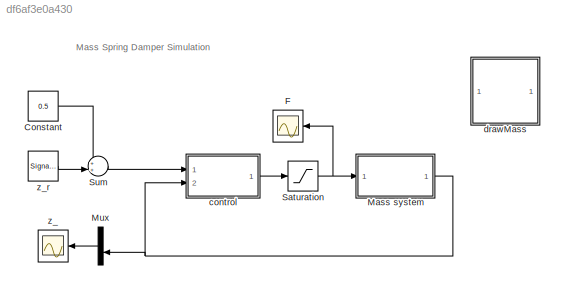
MODEL slx_df6af3e0a430
KIND model
CONFIG AbsTol = auto
CONFIG EnableMultiTasking = on
CONFIG FixedStep = auto
CONFIG InitFcn = addpath ./..\nmass_param\nmassParamHW8
CONFIG MaxStep = auto
CONFIG MinStep = auto
CONFIG RelTol = 1e-3
CONFIG SampleTimeConstraint = Unconstrained
CONFIG Solver = ode45
CONFIG SolverName = ode45
CONFIG StartTime = 0.0
CONFIG StopTime = P.t_end
BLOCK [Constant] Constant
  Value = 0.5
BLOCK [Scope] F
  Floating = off
  NumInputPorts = 1
  Ports = [1]
  ScopeSpecificationString = Simulink.scopes.TimeScopeBlockCfg('CurrentConfiguration', extmgr.ConfigurationSet(extmgr.Configuration('Core','General UI',true),extmgr.Configuration('Core','Source UI',true),extmgr.Configuration('Sources','WiredSimulink',true,'DataLoggingSaveFormat','StructureWithTime','DataLoggingDecimation','1','DataLoggingDecimateData',true,'DataLoggingVariableName','ScopeData1'),extmgr.Configuration('Visuals'...<+1769ch>
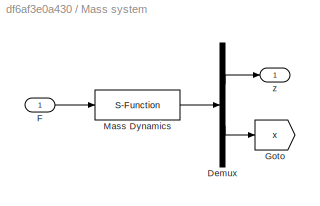
BLOCK [SubSystem] Mass system
  Ports = [1, 1]
  RequestExecContextInheritance = off
BLOCK [Demux] Mass system/Demux
  DisplayOption = bar
  Outputs = [1;2]
  Ports = [1, 2]
BLOCK [Inport] Mass system/F
  IconDisplay = Port number
BLOCK [Goto] Mass system/Goto
  GotoTag = x
  TagVisibility = global
BLOCK [S-Function] Mass system/Mass Dynamics
  EnableBusSupport = off
  FunctionName = mass_dynamics
  Parameters = P
  Ports = [1, 1]
  SFcnIsStateOwnerBlock = off
  SFunctionDeploymentMode = off
BLOCK [Outport] Mass system/z
  IconDisplay = Port number
BLOCK [Mux] Mux
  DisplayOption = bar
  Inputs = 2
  Ports = [2, 1]
BLOCK [Saturate] Saturation
  InputPortMap = u0
  LowerLimit = -P.F_max
  Ports = [1, 1]
  UpperLimit = P.F_max
BLOCK [Sum] Sum
  IconShape = round
  InputSameDT = off
  Inputs = ++|
  OutDataTypeStr = Inherit: Inherit via internal rule
  Ports = [2, 1]
  SaturateOnIntegerOverflow = off
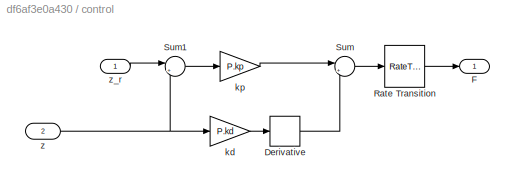
BLOCK [SubSystem] control
  Ports = [2, 1]
  RequestExecContextInheritance = off
BLOCK [Derivative] control/Derivative
  CoefficientInTFapproximation = P.sigma
BLOCK [Outport] control/F
  IconDisplay = Port number
BLOCK [RateTransition] control/Rate Transition
  OutPortSampleTime = P.Ts
BLOCK [Sum] control/Sum
  IconShape = round
  InputSameDT = off
  Inputs = |+-
  OutDataTypeStr = Inherit: Inherit via internal rule
  Ports = [2, 1]
  SaturateOnIntegerOverflow = off
BLOCK [Sum] control/Sum1
  IconShape = round
  InputSameDT = off
  Inputs = |+-
  OutDataTypeStr = Inherit: Inherit via internal rule
  Ports = [2, 1]
  SaturateOnIntegerOverflow = off
BLOCK [Gain] control/kd
  Gain = P.kd
  OutDataTypeStr = Inherit: Inherit via internal rule
  ParamDataTypeStr = Inherit: Inherit via internal rule
  SaturateOnIntegerOverflow = off
BLOCK [Gain] control/kp
  Gain = P.kp
  OutDataTypeStr = Inherit: Inherit via internal rule
  ParamDataTypeStr = Inherit: Inherit via internal rule
  SaturateOnIntegerOverflow = off
BLOCK [Inport] control/z
  IconDisplay = Port number
  Port = 2
BLOCK [Inport] control/z_r
  IconDisplay = Port number
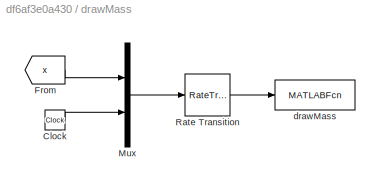
BLOCK [SubSystem] drawMass
  Ports = []
  RequestExecContextInheritance = off
BLOCK [Clock] drawMass/Clock
BLOCK [From] drawMass/From
  GotoTag = x
  TagVisibility = global
BLOCK [Mux] drawMass/Mux
  DisplayOption = bar
  Inputs = 2
  Ports = [2, 1]
BLOCK [RateTransition] drawMass/Rate Transition
  OutPortSampleTime = P.t_plot
BLOCK [MATLABFcn] drawMass/drawMass
  MATLABFcn = drawMSD(u, P)
  OutputDimensions = 0
  Ports = [1]
BLOCK [Scope] z_
  Floating = off
  NumInputPorts = 1
  Ports = [1]
  ScopeSpecificationString = Simulink.scopes.TimeScopeBlockCfg('CurrentConfiguration', extmgr.ConfigurationSet(extmgr.Configuration('Core','General UI',true),extmgr.Configuration('Core','Source UI',true),extmgr.Configuration('Sources','WiredSimulink',true,'DataLoggingSaveFormat','StructureWithTime','DataLoggingDecimation','1','DataLoggingDecimateData',true),extmgr.Configuration('Visuals','Time Domain',true,'SerializedDisplays...<+1736ch>
BLOCK [SignalGenerator] z_r
  Amplitude = 0.5
  Frequency = .02
  Ports = [0, 1]
  WaveForm = square
ANNOTATION (root): Mass Spring Damper Simulation
LINE Constant:1 -> Sum:1
LINE Mass system/Demux:1 -> Mass system/z:1
LINE Mass system/Demux:2 -> Mass system/Goto:1
LINE Mass system/F:1 -> Mass system/Mass Dynamics:1
LINE Mass system/Mass Dynamics:1 -> Mass system/Demux:1
NET Mass system:1 -> Mux:2, control:2
LINE Mux:1 -> z_:1
NET Saturation:1 -> F:1, Mass system:1
LINE Sum:1 -> control:1
LINE control/Derivative:1 -> control/Sum:2
LINE control/Rate Transition:1 -> control/F:1
LINE control/Sum1:1 -> control/kp:1
LINE control/Sum:1 -> control/Rate Transition:1
LINE control/kd:1 -> control/Derivative:1
LINE control/kp:1 -> control/Sum:1
NET control/z:1 -> control/Sum1:2, control/kd:1
LINE control/z_r:1 -> control/Sum1:1
LINE control:1 -> Saturation:1
LINE drawMass/Clock:1 -> drawMass/Mux:2
LINE drawMass/From:1 -> drawMass/Mux:1
LINE drawMass/Mux:1 -> drawMass/Rate Transition:1
LINE drawMass/Rate Transition:1 -> drawMass/drawMass:1
LINE z_r:1 -> Sum:2
note: NET lines group one-source signal fan-out (src -> all destinations, sorted); 1:1 wires keep LINE
